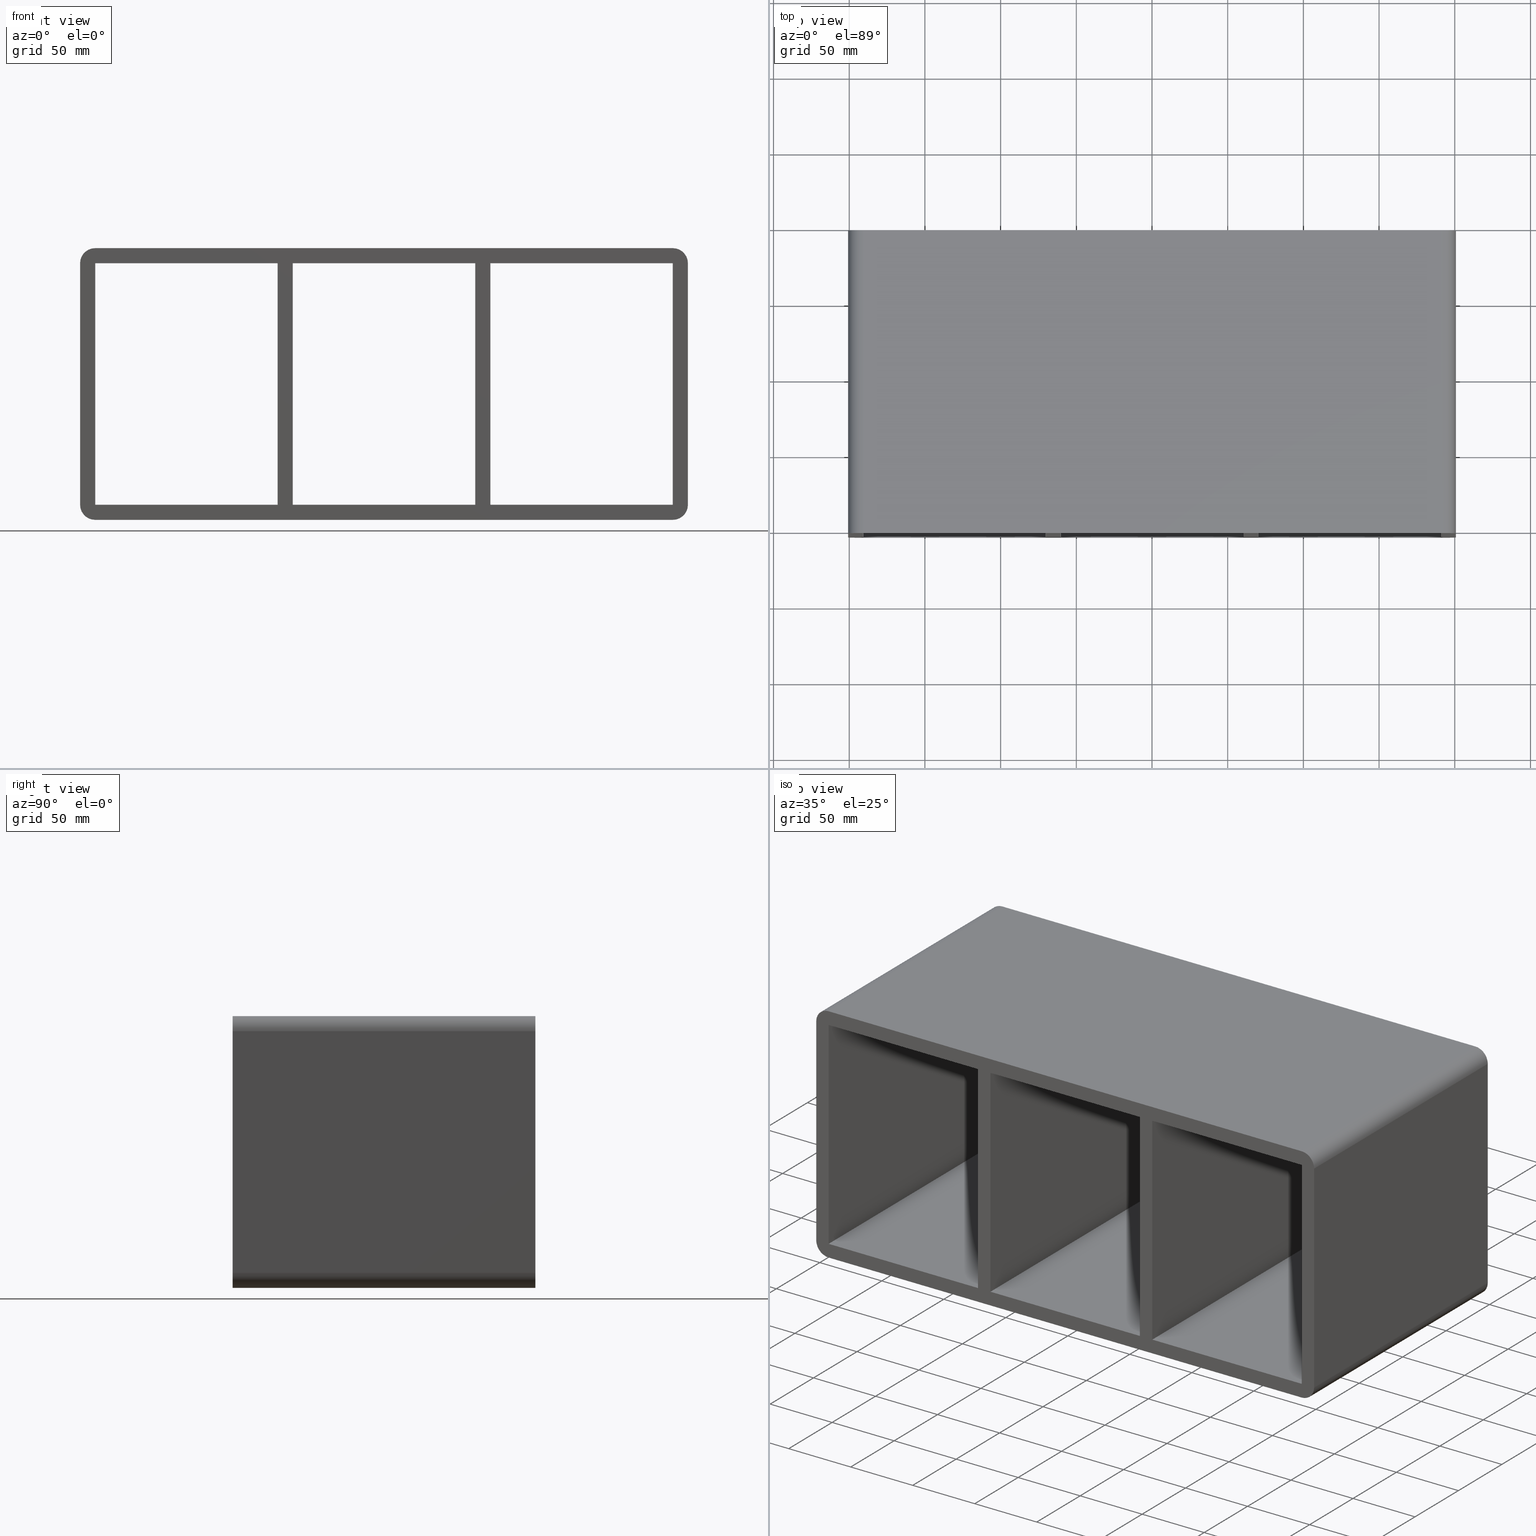
[diagram: canonical four-view strip — front | top / right | iso, engineering-drawing reading convention]
A machine part, canonical four-view strip (front | top / right | iso — engineering-drawing reading convention). The complete STEP part file that produces these views, byte-faithful:
ISO-10303-21;
HEADER;
/****************************************************************
 * Generated by software with PDElib inside                    *
 * PDElib Version v51a, created Wed 11/30/2011                  *
 * ITI Transcendata (http://www.transcendata.com/)              *
 ****************************************************************/
FILE_DESCRIPTION((''),'2;1');
FILE_NAME('C:\\RoxtecConfigurator\\CreatedFiles\\STEP\\SBTB4X3.stp','2013-02-26T13:23:28',(''),(''),'Autodesk Inventor 2013','Autodesk Inventor 2013','');
FILE_SCHEMA(('AUTOMOTIVE_DESIGN { 1 0 10303 214 1 1 1 1 }'));
ENDSEC;
DATA;
#5=APPLICATION_CONTEXT('automotive design');
#6=APPLICATION_PROTOCOL_DEFINITION('International Standard','automotive_design',2001,#5);
#7=PRODUCT_CONTEXT('',#5,'mechanical');
#8=PRODUCT('roxtec S_SF_G','roxtec S_SF_G',$,(#7));
#9=PRODUCT_RELATED_PRODUCT_CATEGORY('part',$,(#8));
#10=PRODUCT_DEFINITION_FORMATION('',$,#8);
#11=PRODUCT_DEFINITION_CONTEXT('part definition',#5,'design');
#12=PRODUCT_DEFINITION('',$,#10,#11);
#18=(NAMED_UNIT(*)PLANE_ANGLE_UNIT()SI_UNIT($,.RADIAN.));
#19=DIMENSIONAL_EXPONENTS(0.0,0.0,0.0,0.0,0.0,0.0,0.0);
#20=PLANE_ANGLE_MEASURE_WITH_UNIT(PLANE_ANGLE_MEASURE(0.0174532925),#18);
#24=(CONVERSION_BASED_UNIT('DEGREE',#20)NAMED_UNIT(#19)PLANE_ANGLE_UNIT());
#28=(NAMED_UNIT(*)SI_UNIT($,.STERADIAN.)SOLID_ANGLE_UNIT());
#32=(LENGTH_UNIT()NAMED_UNIT(*)SI_UNIT(.MILLI.,.METRE.));
#34=UNCERTAINTY_MEASURE_WITH_UNIT(LENGTH_MEASURE(0.01),#32,'DISTANCE_ACCURACY_VALUE','');
#36=(GEOMETRIC_REPRESENTATION_CONTEXT(3)GLOBAL_UNCERTAINTY_ASSIGNED_CONTEXT((#34))GLOBAL_UNIT_ASSIGNED_CONTEXT((#24,#28,#32))REPRESENTATION_CONTEXT('None','None'));
#37=AXIS2_PLACEMENT_3D('',#38,#39,#40);
#38=CARTESIAN_POINT('',(0.0,0.0,0.0));
#39=DIRECTION('',(0.0,0.0,1.0));
#40=DIRECTION('',(1.0,0.0,0.0));
#41=SHAPE_REPRESENTATION('',(#37),#36);
#42=PRODUCT_DEFINITION_SHAPE('','',#12);
#43=SHAPE_DEFINITION_REPRESENTATION(#42,#41);
#49=(NAMED_UNIT(*)PLANE_ANGLE_UNIT()SI_UNIT($,.RADIAN.));
#50=DIMENSIONAL_EXPONENTS(0.0,0.0,0.0,0.0,0.0,0.0,0.0);
#51=PLANE_ANGLE_MEASURE_WITH_UNIT(PLANE_ANGLE_MEASURE(0.0174532925),#49);
#55=(CONVERSION_BASED_UNIT('DEGREE',#51)NAMED_UNIT(#50)PLANE_ANGLE_UNIT());
#59=(NAMED_UNIT(*)SI_UNIT($,.STERADIAN.)SOLID_ANGLE_UNIT());
#63=(LENGTH_UNIT()NAMED_UNIT(*)SI_UNIT(.MILLI.,.METRE.));
#65=UNCERTAINTY_MEASURE_WITH_UNIT(LENGTH_MEASURE(0.000001),#63,'DISTANCE_ACCURACY_VALUE','');
#67=(GEOMETRIC_REPRESENTATION_CONTEXT(3)GLOBAL_UNCERTAINTY_ASSIGNED_CONTEXT((#65))GLOBAL_UNIT_ASSIGNED_CONTEXT((#55,#59,#63))REPRESENTATION_CONTEXT('','3D'));
#68=CARTESIAN_POINT('',(60.249999999998778,-3.0,-79.750000000000014));
#69=DIRECTION('',(-1.0,0.0,0.0));
#70=DIRECTION('',(0.0,0.0,1.0));
#71=AXIS2_PLACEMENT_3D('',#68,#69,#70);
#72=PLANE('',#71);
#73=CARTESIAN_POINT('',(60.249999999998778,-3.0,-79.750000000000014));
#74=VERTEX_POINT('',#73);
#75=CARTESIAN_POINT('',(60.249999999998764,-3.0,79.750000000000028));
#76=VERTEX_POINT('',#75);
#77=CARTESIAN_POINT('',(60.249999999998778,-3.0,-79.750000000000014));
#78=DIRECTION('',(0.0,0.0,1.0));
#79=VECTOR('',#78,159.50000000000006);
#80=LINE('',#77,#79);
#81=EDGE_CURVE('',#74,#76,#80,.T.);
#82=ORIENTED_EDGE('',*,*,#81,.T.);
#83=CARTESIAN_POINT('',(60.249999999998764,197.0,79.750000000000028));
#84=VERTEX_POINT('',#83);
#85=CARTESIAN_POINT('',(60.249999999998771,196.99999999999997,79.750000000000028));
#86=DIRECTION('',(0.0,-1.0,0.0));
#87=VECTOR('',#86,199.99999999999997);
#88=LINE('',#85,#87);
#89=EDGE_CURVE('',#84,#76,#88,.T.);
#90=ORIENTED_EDGE('',*,*,#89,.F.);
#91=CARTESIAN_POINT('',(60.249999999998778,197.0,-79.750000000000014));
#92=VERTEX_POINT('',#91);
#93=CARTESIAN_POINT('',(60.249999999998778,197.0,-79.750000000000014));
#94=DIRECTION('',(0.0,0.0,1.0));
#95=VECTOR('',#94,159.50000000000006);
#96=LINE('',#93,#95);
#97=EDGE_CURVE('',#92,#84,#96,.T.);
#98=ORIENTED_EDGE('',*,*,#97,.F.);
#99=CARTESIAN_POINT('',(60.249999999998778,-3.0,-79.750000000000014));
#100=DIRECTION('',(0.0,1.0,0.0));
#101=VECTOR('',#100,199.99999999999997);
#102=LINE('',#99,#101);
#103=EDGE_CURVE('',#74,#92,#102,.T.);
#104=ORIENTED_EDGE('',*,*,#103,.F.);
#105=EDGE_LOOP('',(#82,#90,#98,#104));
#106=FACE_OUTER_BOUND('',#105,.T.);
#107=ADVANCED_FACE('',(#106),#72,.T.);
#108=CARTESIAN_POINT('',(70.249999999985448,-3.0,79.750000000000028));
#109=DIRECTION('',(1.0,0.0,0.0));
#110=DIRECTION('',(0.0,0.0,-1.0));
#111=AXIS2_PLACEMENT_3D('',#108,#109,#110);
#112=PLANE('',#111);
#113=CARTESIAN_POINT('',(70.249999999985448,-3.0,79.750000000000028));
#114=VERTEX_POINT('',#113);
#115=CARTESIAN_POINT('',(70.249999999985448,-3.0,-79.74999999997155));
#116=VERTEX_POINT('',#115);
#117=CARTESIAN_POINT('',(70.249999999985448,-3.0,79.750000000000028));
#118=DIRECTION('',(0.0,0.0,-1.0));
#119=VECTOR('',#118,159.49999999997158);
#120=LINE('',#117,#119);
#121=EDGE_CURVE('',#114,#116,#120,.T.);
#122=ORIENTED_EDGE('',*,*,#121,.T.);
#123=CARTESIAN_POINT('',(70.249999999985448,197.0,-79.74999999997155));
#124=VERTEX_POINT('',#123);
#125=CARTESIAN_POINT('',(70.249999999985448,196.99999999999997,-79.750000000000014));
#126=DIRECTION('',(0.0,-1.0,0.0));
#127=VECTOR('',#126,199.99999999999997);
#128=LINE('',#125,#127);
#129=EDGE_CURVE('',#124,#116,#128,.T.);
#130=ORIENTED_EDGE('',*,*,#129,.F.);
#131=CARTESIAN_POINT('',(70.249999999985448,197.0,79.750000000000028));
#132=VERTEX_POINT('',#131);
#133=CARTESIAN_POINT('',(70.249999999985448,197.0,79.750000000000028));
#134=DIRECTION('',(0.0,0.0,-1.0));
#135=VECTOR('',#134,159.49999999997158);
#136=LINE('',#133,#135);
#137=EDGE_CURVE('',#132,#124,#136,.T.);
#138=ORIENTED_EDGE('',*,*,#137,.F.);
#139=CARTESIAN_POINT('',(70.249999999985448,-3.0,79.750000000000028));
#140=DIRECTION('',(0.0,1.0,0.0));
#141=VECTOR('',#140,199.99999999999997);
#142=LINE('',#139,#141);
#143=EDGE_CURVE('',#114,#132,#142,.T.);
#144=ORIENTED_EDGE('',*,*,#143,.F.);
#145=EDGE_LOOP('',(#122,#130,#138,#144));
#146=FACE_OUTER_BOUND('',#145,.T.);
#147=ADVANCED_FACE('',(#146),#112,.T.);
#148=CARTESIAN_POINT('',(190.75000000000006,0.0,-79.750000000000014));
#149=DIRECTION('',(0.0,0.0,-1.0));
#150=DIRECTION('',(-1.0,0.0,0.0));
#151=AXIS2_PLACEMENT_3D('',#148,#149,#150);
#152=PLANE('',#151);
#153=ORIENTED_EDGE('',*,*,#103,.T.);
#154=CARTESIAN_POINT('',(-60.250000000014552,197.0,-79.74999999997155));
#155=VERTEX_POINT('',#154);
#156=CARTESIAN_POINT('',(-60.250000000014552,197.0,-79.750000000000014));
#157=DIRECTION('',(1.0,0.0,0.0));
#158=VECTOR('',#157,120.50000000001333);
#159=LINE('',#156,#158);
#160=EDGE_CURVE('',#155,#92,#159,.T.);
#161=ORIENTED_EDGE('',*,*,#160,.F.);
#162=CARTESIAN_POINT('',(-60.250000000014552,-3.0,-79.74999999997155));
#163=VERTEX_POINT('',#162);
#164=CARTESIAN_POINT('',(-60.250000000014552,196.99999999999997,-79.750000000000014));
#165=DIRECTION('',(0.0,-1.0,0.0));
#166=VECTOR('',#165,199.99999999999997);
#167=LINE('',#164,#166);
#168=EDGE_CURVE('',#155,#163,#167,.T.);
#169=ORIENTED_EDGE('',*,*,#168,.T.);
#170=CARTESIAN_POINT('',(60.249999999998778,-3.0,-79.750000000000014));
#171=DIRECTION('',(-1.0,0.0,0.0));
#172=VECTOR('',#171,120.50000000001333);
#173=LINE('',#170,#172);
#174=EDGE_CURVE('',#74,#163,#173,.T.);
#175=ORIENTED_EDGE('',*,*,#174,.F.);
#176=EDGE_LOOP('',(#153,#161,#169,#175));
#177=FACE_OUTER_BOUND('',#176,.T.);
#178=ADVANCED_FACE('',(#177),#152,.F.);
#179=CARTESIAN_POINT('',(190.75000000000006,0.0,-79.750000000000014));
#180=DIRECTION('',(0.0,0.0,-1.0));
#181=DIRECTION('',(-1.0,0.0,0.0));
#182=AXIS2_PLACEMENT_3D('',#179,#180,#181);
#183=PLANE('',#182);
#184=ORIENTED_EDGE('',*,*,#129,.T.);
#185=CARTESIAN_POINT('',(190.75000000000006,-3.0,-79.750000000000014));
#186=VERTEX_POINT('',#185);
#187=CARTESIAN_POINT('',(190.75000000000006,-3.0,-79.750000000000014));
#188=DIRECTION('',(-1.0,0.0,0.0));
#189=VECTOR('',#188,120.50000000001461);
#190=LINE('',#187,#189);
#191=EDGE_CURVE('',#186,#116,#190,.T.);
#192=ORIENTED_EDGE('',*,*,#191,.F.);
#193=CARTESIAN_POINT('',(190.75000000000006,197.0,-79.750000000000014));
#194=VERTEX_POINT('',#193);
#195=CARTESIAN_POINT('',(190.75000000000006,197.0,-79.750000000000014));
#196=DIRECTION('',(0.0,-1.0,0.0));
#197=VECTOR('',#196,200.0);
#198=LINE('',#195,#197);
#199=EDGE_CURVE('',#194,#186,#198,.T.);
#200=ORIENTED_EDGE('',*,*,#199,.F.);
#201=CARTESIAN_POINT('',(70.249999999985448,197.0,-79.750000000000014));
#202=DIRECTION('',(1.0,0.0,0.0));
#203=VECTOR('',#202,120.50000000001461);
#204=LINE('',#201,#203);
#205=EDGE_CURVE('',#124,#194,#204,.T.);
#206=ORIENTED_EDGE('',*,*,#205,.F.);
#207=EDGE_LOOP('',(#184,#192,#200,#206));
#208=FACE_OUTER_BOUND('',#207,.T.);
#209=ADVANCED_FACE('',(#208),#183,.F.);
#210=CARTESIAN_POINT('',(-190.75000000000003,0.0,79.750000000000028));
#211=DIRECTION('',(0.0,0.0,1.0));
#212=DIRECTION('',(1.0,0.0,0.0));
#213=AXIS2_PLACEMENT_3D('',#210,#211,#212);
#214=PLANE('',#213);
#215=ORIENTED_EDGE('',*,*,#143,.T.);
#216=CARTESIAN_POINT('',(190.75000000000006,197.0,79.750000000000028));
#217=VERTEX_POINT('',#216);
#218=CARTESIAN_POINT('',(190.75000000000006,197.0,79.750000000000028));
#219=DIRECTION('',(-1.0,0.0,0.0));
#220=VECTOR('',#219,120.50000000001459);
#221=LINE('',#218,#220);
#222=EDGE_CURVE('',#217,#132,#221,.T.);
#223=ORIENTED_EDGE('',*,*,#222,.F.);
#224=CARTESIAN_POINT('',(190.75000000000006,-3.0,79.750000000000028));
#225=VERTEX_POINT('',#224);
#226=CARTESIAN_POINT('',(190.75000000000006,-3.0,79.750000000000028));
#227=DIRECTION('',(0.0,1.0,0.0));
#228=VECTOR('',#227,200.0);
#229=LINE('',#226,#228);
#230=EDGE_CURVE('',#225,#217,#229,.T.);
#231=ORIENTED_EDGE('',*,*,#230,.F.);
#232=CARTESIAN_POINT('',(70.249999999985462,-3.0,79.750000000000028));
#233=DIRECTION('',(1.0,0.0,0.0));
#234=VECTOR('',#233,120.50000000001459);
#235=LINE('',#232,#234);
#236=EDGE_CURVE('',#114,#225,#235,.T.);
#237=ORIENTED_EDGE('',*,*,#236,.F.);
#238=EDGE_LOOP('',(#215,#223,#231,#237));
#239=FACE_OUTER_BOUND('',#238,.T.);
#240=ADVANCED_FACE('',(#239),#214,.F.);
#241=CARTESIAN_POINT('',(-190.75000000000003,0.0,79.750000000000028));
#242=DIRECTION('',(0.0,0.0,1.0));
#243=DIRECTION('',(1.0,0.0,0.0));
#244=AXIS2_PLACEMENT_3D('',#241,#242,#243);
#245=PLANE('',#244);
#246=ORIENTED_EDGE('',*,*,#89,.T.);
#247=CARTESIAN_POINT('',(-60.250000000014552,-3.0,79.750000000000028));
#248=VERTEX_POINT('',#247);
#249=CARTESIAN_POINT('',(-60.250000000014552,-3.0,79.750000000000028));
#250=DIRECTION('',(1.0,0.0,0.0));
#251=VECTOR('',#250,120.50000000001332);
#252=LINE('',#249,#251);
#253=EDGE_CURVE('',#248,#76,#252,.T.);
#254=ORIENTED_EDGE('',*,*,#253,.F.);
#255=CARTESIAN_POINT('',(-60.250000000014552,197.0,79.750000000000028));
#256=VERTEX_POINT('',#255);
#257=CARTESIAN_POINT('',(-60.250000000014552,-3.0,79.750000000000028));
#258=DIRECTION('',(0.0,1.0,0.0));
#259=VECTOR('',#258,199.99999999999997);
#260=LINE('',#257,#259);
#261=EDGE_CURVE('',#248,#256,#260,.T.);
#262=ORIENTED_EDGE('',*,*,#261,.T.);
#263=CARTESIAN_POINT('',(60.249999999998764,197.0,79.750000000000028));
#264=DIRECTION('',(-1.0,0.0,0.0));
#265=VECTOR('',#264,120.50000000001332);
#266=LINE('',#263,#265);
#267=EDGE_CURVE('',#84,#256,#266,.T.);
#268=ORIENTED_EDGE('',*,*,#267,.F.);
#269=EDGE_LOOP('',(#246,#254,#262,#268));
#270=FACE_OUTER_BOUND('',#269,.T.);
#271=ADVANCED_FACE('',(#270),#245,.F.);
#272=CARTESIAN_POINT('',(-70.250000000001222,-3.0,-79.750000000000014));
#273=DIRECTION('',(-1.0,0.0,0.0));
#274=DIRECTION('',(0.0,0.0,1.0));
#275=AXIS2_PLACEMENT_3D('',#272,#273,#274);
#276=PLANE('',#275);
#277=CARTESIAN_POINT('',(-70.250000000001222,-3.0,-79.750000000000014));
#278=VERTEX_POINT('',#277);
#279=CARTESIAN_POINT('',(-70.250000000001251,-3.0,79.750000000000028));
#280=VERTEX_POINT('',#279);
#281=CARTESIAN_POINT('',(-70.250000000001222,-3.0,-79.750000000000014));
#282=DIRECTION('',(0.0,0.0,1.0));
#283=VECTOR('',#282,159.50000000000006);
#284=LINE('',#281,#283);
#285=EDGE_CURVE('',#278,#280,#284,.T.);
#286=ORIENTED_EDGE('',*,*,#285,.T.);
#287=CARTESIAN_POINT('',(-70.250000000001251,197.0,79.750000000000028));
#288=VERTEX_POINT('',#287);
#289=CARTESIAN_POINT('',(-70.250000000001251,196.99999999999997,79.750000000000028));
#290=DIRECTION('',(0.0,-1.0,0.0));
#291=VECTOR('',#290,199.99999999999997);
#292=LINE('',#289,#291);
#293=EDGE_CURVE('',#288,#280,#292,.T.);
#294=ORIENTED_EDGE('',*,*,#293,.F.);
#295=CARTESIAN_POINT('',(-70.250000000001222,197.0,-79.750000000000014));
#296=VERTEX_POINT('',#295);
#297=CARTESIAN_POINT('',(-70.250000000001222,197.0,-79.750000000000014));
#298=DIRECTION('',(0.0,0.0,1.0));
#299=VECTOR('',#298,159.50000000000006);
#300=LINE('',#297,#299);
#301=EDGE_CURVE('',#296,#288,#300,.T.);
#302=ORIENTED_EDGE('',*,*,#301,.F.);
#303=CARTESIAN_POINT('',(-70.250000000001222,-3.0,-79.750000000000014));
#304=DIRECTION('',(0.0,1.0,0.0));
#305=VECTOR('',#304,199.99999999999997);
#306=LINE('',#303,#305);
#307=EDGE_CURVE('',#278,#296,#306,.T.);
#308=ORIENTED_EDGE('',*,*,#307,.F.);
#309=EDGE_LOOP('',(#286,#294,#302,#308));
#310=FACE_OUTER_BOUND('',#309,.T.);
#311=ADVANCED_FACE('',(#310),#276,.T.);
#312=CARTESIAN_POINT('',(-60.250000000014552,-3.0,79.750000000000028));
#313=DIRECTION('',(1.0,0.0,0.0));
#314=DIRECTION('',(0.0,0.0,-1.0));
#315=AXIS2_PLACEMENT_3D('',#312,#313,#314);
#316=PLANE('',#315);
#317=CARTESIAN_POINT('',(-60.250000000014552,-3.0,79.750000000000028));
#318=DIRECTION('',(0.0,0.0,-1.0));
#319=VECTOR('',#318,159.49999999997158);
#320=LINE('',#317,#319);
#321=EDGE_CURVE('',#248,#163,#320,.T.);
#322=ORIENTED_EDGE('',*,*,#321,.T.);
#323=ORIENTED_EDGE('',*,*,#168,.F.);
#324=CARTESIAN_POINT('',(-60.250000000014552,197.0,79.750000000000028));
#325=DIRECTION('',(0.0,0.0,-1.0));
#326=VECTOR('',#325,159.49999999997158);
#327=LINE('',#324,#326);
#328=EDGE_CURVE('',#256,#155,#327,.T.);
#329=ORIENTED_EDGE('',*,*,#328,.F.);
#330=ORIENTED_EDGE('',*,*,#261,.F.);
#331=EDGE_LOOP('',(#322,#323,#329,#330));
#332=FACE_OUTER_BOUND('',#331,.T.);
#333=ADVANCED_FACE('',(#332),#316,.T.);
#334=CARTESIAN_POINT('',(190.75000000000006,0.0,-79.750000000000014));
#335=DIRECTION('',(0.0,0.0,-1.0));
#336=DIRECTION('',(-1.0,0.0,0.0));
#337=AXIS2_PLACEMENT_3D('',#334,#335,#336);
#338=PLANE('',#337);
#339=ORIENTED_EDGE('',*,*,#307,.T.);
#340=CARTESIAN_POINT('',(-190.75,197.0,-79.750000000000014));
#341=VERTEX_POINT('',#340);
#342=CARTESIAN_POINT('',(-190.75000000000003,197.0,-79.750000000000014));
#343=DIRECTION('',(1.0,0.0,0.0));
#344=VECTOR('',#343,120.49999999999878);
#345=LINE('',#342,#344);
#346=EDGE_CURVE('',#341,#296,#345,.T.);
#347=ORIENTED_EDGE('',*,*,#346,.F.);
#348=CARTESIAN_POINT('',(-190.75,-3.0,-79.750000000000014));
#349=VERTEX_POINT('',#348);
#350=CARTESIAN_POINT('',(-190.75000000000003,-3.0,-79.750000000000014));
#351=DIRECTION('',(0.0,1.0,0.0));
#352=VECTOR('',#351,200.0);
#353=LINE('',#350,#352);
#354=EDGE_CURVE('',#349,#341,#353,.T.);
#355=ORIENTED_EDGE('',*,*,#354,.F.);
#356=CARTESIAN_POINT('',(-70.250000000001251,-3.0,-79.750000000000014));
#357=DIRECTION('',(-1.0,0.0,0.0));
#358=VECTOR('',#357,120.49999999999878);
#359=LINE('',#356,#358);
#360=EDGE_CURVE('',#278,#349,#359,.T.);
#361=ORIENTED_EDGE('',*,*,#360,.F.);
#362=EDGE_LOOP('',(#339,#347,#355,#361));
#363=FACE_OUTER_BOUND('',#362,.T.);
#364=ADVANCED_FACE('',(#363),#338,.F.);
#365=CARTESIAN_POINT('',(-190.75000000000003,0.0,79.750000000000028));
#366=DIRECTION('',(0.0,0.0,1.0));
#367=DIRECTION('',(1.0,0.0,0.0));
#368=AXIS2_PLACEMENT_3D('',#365,#366,#367);
#369=PLANE('',#368);
#370=ORIENTED_EDGE('',*,*,#293,.T.);
#371=CARTESIAN_POINT('',(-190.75,-3.0,79.750000000000028));
#372=VERTEX_POINT('',#371);
#373=CARTESIAN_POINT('',(-190.75,-3.0,79.750000000000028));
#374=DIRECTION('',(1.0,0.0,0.0));
#375=VECTOR('',#374,120.49999999999875);
#376=LINE('',#373,#375);
#377=EDGE_CURVE('',#372,#280,#376,.T.);
#378=ORIENTED_EDGE('',*,*,#377,.F.);
#379=CARTESIAN_POINT('',(-190.75,197.0,79.750000000000028));
#380=VERTEX_POINT('',#379);
#381=CARTESIAN_POINT('',(-190.75000000000003,-3.0,79.750000000000028));
#382=DIRECTION('',(0.0,1.0,0.0));
#383=VECTOR('',#382,200.0);
#384=LINE('',#381,#383);
#385=EDGE_CURVE('',#372,#380,#384,.T.);
#386=ORIENTED_EDGE('',*,*,#385,.T.);
#387=CARTESIAN_POINT('',(-70.250000000001251,197.0,79.750000000000028));
#388=DIRECTION('',(-1.0,0.0,0.0));
#389=VECTOR('',#388,120.49999999999875);
#390=LINE('',#387,#389);
#391=EDGE_CURVE('',#288,#380,#390,.T.);
#392=ORIENTED_EDGE('',*,*,#391,.F.);
#393=EDGE_LOOP('',(#370,#378,#386,#392));
#394=FACE_OUTER_BOUND('',#393,.T.);
#395=ADVANCED_FACE('',(#394),#369,.F.);
#396=CARTESIAN_POINT('',(-190.75000000000003,0.0,-79.75));
#397=DIRECTION('',(0.0,1.0,0.0));
#398=DIRECTION('',(-0.707106781186547,0.0,-0.707106781186547));
#399=AXIS2_PLACEMENT_3D('',#396,#397,#398);
#400=CYLINDRICAL_SURFACE('',#399,10.0);
#401=CARTESIAN_POINT('',(-200.75000000000003,197.0,-79.75));
#402=VERTEX_POINT('',#401);
#403=CARTESIAN_POINT('',(-190.75000000000003,197.0,-89.75));
#404=VERTEX_POINT('',#403);
#405=CARTESIAN_POINT('',(-190.75000000000003,197.0,-79.75));
#406=DIRECTION('',(0.0,-1.0,0.0));
#407=DIRECTION('',(-0.707106781186547,0.0,-0.707106781186547));
#408=AXIS2_PLACEMENT_3D('',#405,#406,#407);
#409=CIRCLE('',#408,9.999999999999998);
#410=EDGE_CURVE('',#402,#404,#409,.T.);
#411=ORIENTED_EDGE('',*,*,#410,.T.);
#412=CARTESIAN_POINT('',(-190.75000000000003,-3.0,-89.75));
#413=VERTEX_POINT('',#412);
#414=CARTESIAN_POINT('',(-190.75000000000003,197.0,-89.75));
#415=DIRECTION('',(0.0,-1.0,0.0));
#416=VECTOR('',#415,200.0);
#417=LINE('',#414,#416);
#418=EDGE_CURVE('',#404,#413,#417,.T.);
#419=ORIENTED_EDGE('',*,*,#418,.T.);
#420=CARTESIAN_POINT('',(-200.75000000000003,-3.0,-79.75));
#421=VERTEX_POINT('',#420);
#422=CARTESIAN_POINT('',(-190.75000000000003,-3.0,-79.75));
#423=DIRECTION('',(0.0,1.0,0.0));
#424=DIRECTION('',(-0.707106781186547,0.0,-0.707106781186547));
#425=AXIS2_PLACEMENT_3D('',#422,#423,#424);
#426=CIRCLE('',#425,9.999999999999998);
#427=EDGE_CURVE('',#413,#421,#426,.T.);
#428=ORIENTED_EDGE('',*,*,#427,.T.);
#429=CARTESIAN_POINT('',(-200.75000000000003,-3.0,-79.75));
#430=DIRECTION('',(0.0,1.0,0.0));
#431=VECTOR('',#430,200.0);
#432=LINE('',#429,#431);
#433=EDGE_CURVE('',#421,#402,#432,.T.);
#434=ORIENTED_EDGE('',*,*,#433,.T.);
#435=EDGE_LOOP('',(#411,#419,#428,#434));
#436=FACE_OUTER_BOUND('',#435,.T.);
#437=ADVANCED_FACE('',(#436),#400,.T.);
#438=CARTESIAN_POINT('',(-1.714444E-014,-3.0,1.467558E-014));
#439=DIRECTION('',(0.0,1.0,0.0));
#440=DIRECTION('',(0.0,0.0,1.0));
#441=AXIS2_PLACEMENT_3D('',#438,#439,#440);
#442=PLANE('',#441);
#443=ORIENTED_EDGE('',*,*,#427,.F.);
#444=CARTESIAN_POINT('',(190.75,-3.0,-89.75));
#445=VERTEX_POINT('',#444);
#446=CARTESIAN_POINT('',(-190.75000000000003,-3.0,-89.75));
#447=DIRECTION('',(1.0,0.0,0.0));
#448=VECTOR('',#447,381.5);
#449=LINE('',#446,#448);
#450=EDGE_CURVE('',#413,#445,#449,.T.);
#451=ORIENTED_EDGE('',*,*,#450,.T.);
#452=CARTESIAN_POINT('',(200.75,-3.0,-79.75));
#453=VERTEX_POINT('',#452);
#454=CARTESIAN_POINT('',(190.75,-3.0,-79.75));
#455=DIRECTION('',(0.0,1.0,0.0));
#456=DIRECTION('',(0.707106781186547,0.0,-0.707106781186547));
#457=AXIS2_PLACEMENT_3D('',#454,#455,#456);
#458=CIRCLE('',#457,9.999999999999998);
#459=EDGE_CURVE('',#453,#445,#458,.T.);
#460=ORIENTED_EDGE('',*,*,#459,.F.);
#461=CARTESIAN_POINT('',(200.75,-3.0,79.750000000000028));
#462=VERTEX_POINT('',#461);
#463=CARTESIAN_POINT('',(200.75,-3.0,-79.75));
#464=DIRECTION('',(0.0,0.0,1.0));
#465=VECTOR('',#464,159.50000000000003);
#466=LINE('',#463,#465);
#467=EDGE_CURVE('',#453,#462,#466,.T.);
#468=ORIENTED_EDGE('',*,*,#467,.T.);
#469=CARTESIAN_POINT('',(190.75,-3.0,89.750000000000028));
#470=VERTEX_POINT('',#469);
#471=CARTESIAN_POINT('',(190.75000000000003,-3.0,79.750000000000028));
#472=DIRECTION('',(0.0,1.0,0.0));
#473=DIRECTION('',(0.707106781186547,0.0,0.707106781186547));
#474=AXIS2_PLACEMENT_3D('',#471,#472,#473);
#475=CIRCLE('',#474,9.999999999999998);
#476=EDGE_CURVE('',#470,#462,#475,.T.);
#477=ORIENTED_EDGE('',*,*,#476,.F.);
#478=CARTESIAN_POINT('',(-190.75000000000003,-3.0,89.750000000000028));
#479=VERTEX_POINT('',#478);
#480=CARTESIAN_POINT('',(190.75,-3.0,89.750000000000028));
#481=DIRECTION('',(-1.0,0.0,0.0));
#482=VECTOR('',#481,381.5);
#483=LINE('',#480,#482);
#484=EDGE_CURVE('',#470,#479,#483,.T.);
#485=ORIENTED_EDGE('',*,*,#484,.T.);
#486=CARTESIAN_POINT('',(-200.75000000000003,-3.0,79.750000000000028));
#487=VERTEX_POINT('',#486);
#488=CARTESIAN_POINT('',(-190.75000000000003,-3.0,79.750000000000028));
#489=DIRECTION('',(0.0,1.0,0.0));
#490=DIRECTION('',(-0.707106781186547,0.0,0.707106781186547));
#491=AXIS2_PLACEMENT_3D('',#488,#489,#490);
#492=CIRCLE('',#491,9.999999999999998);
#493=EDGE_CURVE('',#487,#479,#492,.T.);
#494=ORIENTED_EDGE('',*,*,#493,.F.);
#495=CARTESIAN_POINT('',(-200.75000000000003,-3.0,79.750000000000028));
#496=DIRECTION('',(0.0,0.0,-1.0));
#497=VECTOR('',#496,159.50000000000003);
#498=LINE('',#495,#497);
#499=EDGE_CURVE('',#487,#421,#498,.T.);
#500=ORIENTED_EDGE('',*,*,#499,.T.);
#501=EDGE_LOOP('',(#443,#451,#460,#468,#477,#485,#494,#500));
#502=FACE_OUTER_BOUND('',#501,.T.);
#503=ORIENTED_EDGE('',*,*,#174,.T.);
#504=ORIENTED_EDGE('',*,*,#321,.F.);
#505=ORIENTED_EDGE('',*,*,#253,.T.);
#506=ORIENTED_EDGE('',*,*,#81,.F.);
#507=EDGE_LOOP('',(#503,#504,#505,#506));
#508=FACE_BOUND('',#507,.T.);
#509=ORIENTED_EDGE('',*,*,#360,.T.);
#510=CARTESIAN_POINT('',(-190.75000000000003,-3.0,-79.750000000000014));
#511=DIRECTION('',(0.0,0.0,1.0));
#512=VECTOR('',#511,159.50000000000006);
#513=LINE('',#510,#512);
#514=EDGE_CURVE('',#349,#372,#513,.T.);
#515=ORIENTED_EDGE('',*,*,#514,.T.);
#516=ORIENTED_EDGE('',*,*,#377,.T.);
#517=ORIENTED_EDGE('',*,*,#285,.F.);
#518=EDGE_LOOP('',(#509,#515,#516,#517));
#519=FACE_BOUND('',#518,.T.);
#520=ORIENTED_EDGE('',*,*,#121,.F.);
#521=ORIENTED_EDGE('',*,*,#236,.T.);
#522=CARTESIAN_POINT('',(190.75000000000006,-3.0,79.750000000000028));
#523=DIRECTION('',(0.0,0.0,-1.0));
#524=VECTOR('',#523,159.50000000000006);
#525=LINE('',#522,#524);
#526=EDGE_CURVE('',#225,#186,#525,.T.);
#527=ORIENTED_EDGE('',*,*,#526,.T.);
#528=ORIENTED_EDGE('',*,*,#191,.T.);
#529=EDGE_LOOP('',(#520,#521,#527,#528));
#530=FACE_BOUND('',#529,.T.);
#531=ADVANCED_FACE('',(#502,#508,#519,#530),#442,.F.);
#532=CARTESIAN_POINT('',(200.75,0.0,-89.75));
#533=DIRECTION('',(0.0,0.0,-1.0));
#534=DIRECTION('',(-1.0,0.0,0.0));
#535=AXIS2_PLACEMENT_3D('',#532,#533,#534);
#536=PLANE('',#535);
#537=ORIENTED_EDGE('',*,*,#418,.F.);
#538=CARTESIAN_POINT('',(190.75,197.0,-89.75));
#539=VERTEX_POINT('',#538);
#540=CARTESIAN_POINT('',(190.75,197.0,-89.75));
#541=DIRECTION('',(-1.0,0.0,0.0));
#542=VECTOR('',#541,381.5);
#543=LINE('',#540,#542);
#544=EDGE_CURVE('',#539,#404,#543,.T.);
#545=ORIENTED_EDGE('',*,*,#544,.F.);
#546=CARTESIAN_POINT('',(190.75,-3.0,-89.75));
#547=DIRECTION('',(0.0,1.0,0.0));
#548=VECTOR('',#547,200.0);
#549=LINE('',#546,#548);
#550=EDGE_CURVE('',#445,#539,#549,.T.);
#551=ORIENTED_EDGE('',*,*,#550,.F.);
#552=ORIENTED_EDGE('',*,*,#450,.F.);
#553=EDGE_LOOP('',(#537,#545,#551,#552));
#554=FACE_OUTER_BOUND('',#553,.T.);
#555=ADVANCED_FACE('',(#554),#536,.T.);
#556=CARTESIAN_POINT('',(190.75,0.0,-79.75));
#557=DIRECTION('',(0.0,1.0,0.0));
#558=DIRECTION('',(0.707106781186547,0.0,-0.707106781186547));
#559=AXIS2_PLACEMENT_3D('',#556,#557,#558);
#560=CYLINDRICAL_SURFACE('',#559,10.0);
#561=CARTESIAN_POINT('',(200.75,197.0,-79.75));
#562=VERTEX_POINT('',#561);
#563=CARTESIAN_POINT('',(190.75,197.0,-79.75));
#564=DIRECTION('',(0.0,-1.0,0.0));
#565=DIRECTION('',(0.707106781186547,0.0,-0.707106781186547));
#566=AXIS2_PLACEMENT_3D('',#563,#564,#565);
#567=CIRCLE('',#566,9.999999999999998);
#568=EDGE_CURVE('',#539,#562,#567,.T.);
#569=ORIENTED_EDGE('',*,*,#568,.T.);
#570=CARTESIAN_POINT('',(200.75,197.0,-79.75));
#571=DIRECTION('',(0.0,-1.0,0.0));
#572=VECTOR('',#571,200.0);
#573=LINE('',#570,#572);
#574=EDGE_CURVE('',#562,#453,#573,.T.);
#575=ORIENTED_EDGE('',*,*,#574,.T.);
#576=ORIENTED_EDGE('',*,*,#459,.T.);
#577=ORIENTED_EDGE('',*,*,#550,.T.);
#578=EDGE_LOOP('',(#569,#575,#576,#577));
#579=FACE_OUTER_BOUND('',#578,.T.);
#580=ADVANCED_FACE('',(#579),#560,.T.);
#581=CARTESIAN_POINT('',(190.75000000000003,0.0,79.750000000000028));
#582=DIRECTION('',(0.0,-1.0,0.0));
#583=DIRECTION('',(0.707106781186547,0.0,0.707106781186547));
#584=AXIS2_PLACEMENT_3D('',#581,#582,#583);
#585=CYLINDRICAL_SURFACE('',#584,10.0);
#586=ORIENTED_EDGE('',*,*,#476,.T.);
#587=CARTESIAN_POINT('',(200.75,197.0,79.750000000000028));
#588=VERTEX_POINT('',#587);
#589=CARTESIAN_POINT('',(200.75,-3.0,79.750000000000028));
#590=DIRECTION('',(0.0,1.0,0.0));
#591=VECTOR('',#590,200.0);
#592=LINE('',#589,#591);
#593=EDGE_CURVE('',#462,#588,#592,.T.);
#594=ORIENTED_EDGE('',*,*,#593,.T.);
#595=CARTESIAN_POINT('',(190.75,197.0,89.750000000000028));
#596=VERTEX_POINT('',#595);
#597=CARTESIAN_POINT('',(190.75000000000003,197.0,79.750000000000028));
#598=DIRECTION('',(0.0,-1.0,0.0));
#599=DIRECTION('',(0.707106781186547,0.0,0.707106781186547));
#600=AXIS2_PLACEMENT_3D('',#597,#598,#599);
#601=CIRCLE('',#600,9.999999999999998);
#602=EDGE_CURVE('',#588,#596,#601,.T.);
#603=ORIENTED_EDGE('',*,*,#602,.T.);
#604=CARTESIAN_POINT('',(190.75000000000003,197.0,89.750000000000028));
#605=DIRECTION('',(0.0,-1.0,0.0));
#606=VECTOR('',#605,200.0);
#607=LINE('',#604,#606);
#608=EDGE_CURVE('',#596,#470,#607,.T.);
#609=ORIENTED_EDGE('',*,*,#608,.T.);
#610=EDGE_LOOP('',(#586,#594,#603,#609));
#611=FACE_OUTER_BOUND('',#610,.T.);
#612=ADVANCED_FACE('',(#611),#585,.T.);
#613=CARTESIAN_POINT('',(-200.75000000000003,0.0,89.750000000000028));
#614=DIRECTION('',(0.0,0.0,1.0));
#615=DIRECTION('',(1.0,0.0,0.0));
#616=AXIS2_PLACEMENT_3D('',#613,#614,#615);
#617=PLANE('',#616);
#618=ORIENTED_EDGE('',*,*,#608,.F.);
#619=CARTESIAN_POINT('',(-190.75000000000003,197.0,89.750000000000028));
#620=VERTEX_POINT('',#619);
#621=CARTESIAN_POINT('',(-190.75000000000003,197.0,89.750000000000028));
#622=DIRECTION('',(1.0,0.0,0.0));
#623=VECTOR('',#622,381.5);
#624=LINE('',#621,#623);
#625=EDGE_CURVE('',#620,#596,#624,.T.);
#626=ORIENTED_EDGE('',*,*,#625,.F.);
#627=CARTESIAN_POINT('',(-190.75000000000003,-3.0,89.750000000000028));
#628=DIRECTION('',(0.0,1.0,0.0));
#629=VECTOR('',#628,200.0);
#630=LINE('',#627,#629);
#631=EDGE_CURVE('',#479,#620,#630,.T.);
#632=ORIENTED_EDGE('',*,*,#631,.F.);
#633=ORIENTED_EDGE('',*,*,#484,.F.);
#634=EDGE_LOOP('',(#618,#626,#632,#633));
#635=FACE_OUTER_BOUND('',#634,.T.);
#636=ADVANCED_FACE('',(#635),#617,.T.);
#637=CARTESIAN_POINT('',(-190.75000000000003,0.0,79.750000000000028));
#638=DIRECTION('',(0.0,1.0,0.0));
#639=DIRECTION('',(-0.707106781186547,0.0,0.707106781186547));
#640=AXIS2_PLACEMENT_3D('',#637,#638,#639);
#641=CYLINDRICAL_SURFACE('',#640,10.0);
#642=CARTESIAN_POINT('',(-200.75000000000003,197.0,79.750000000000028));
#643=VERTEX_POINT('',#642);
#644=CARTESIAN_POINT('',(-190.75000000000003,197.0,79.750000000000028));
#645=DIRECTION('',(0.0,-1.0,0.0));
#646=DIRECTION('',(-0.707106781186547,0.0,0.707106781186547));
#647=AXIS2_PLACEMENT_3D('',#644,#645,#646);
#648=CIRCLE('',#647,9.999999999999998);
#649=EDGE_CURVE('',#620,#643,#648,.T.);
#650=ORIENTED_EDGE('',*,*,#649,.T.);
#651=CARTESIAN_POINT('',(-200.75000000000003,197.0,79.750000000000028));
#652=DIRECTION('',(0.0,-1.0,0.0));
#653=VECTOR('',#652,200.0);
#654=LINE('',#651,#653);
#655=EDGE_CURVE('',#643,#487,#654,.T.);
#656=ORIENTED_EDGE('',*,*,#655,.T.);
#657=ORIENTED_EDGE('',*,*,#493,.T.);
#658=ORIENTED_EDGE('',*,*,#631,.T.);
#659=EDGE_LOOP('',(#650,#656,#657,#658));
#660=FACE_OUTER_BOUND('',#659,.T.);
#661=ADVANCED_FACE('',(#660),#641,.T.);
#662=CARTESIAN_POINT('',(190.75000000000006,0.0,79.750000000000028));
#663=DIRECTION('',(1.0,0.0,0.0));
#664=DIRECTION('',(0.0,0.0,-1.0));
#665=AXIS2_PLACEMENT_3D('',#662,#663,#664);
#666=PLANE('',#665);
#667=ORIENTED_EDGE('',*,*,#199,.T.);
#668=ORIENTED_EDGE('',*,*,#526,.F.);
#669=ORIENTED_EDGE('',*,*,#230,.T.);
#670=CARTESIAN_POINT('',(190.75000000000006,197.0,-79.750000000000014));
#671=DIRECTION('',(0.0,0.0,1.0));
#672=VECTOR('',#671,159.50000000000006);
#673=LINE('',#670,#672);
#674=EDGE_CURVE('',#194,#217,#673,.T.);
#675=ORIENTED_EDGE('',*,*,#674,.F.);
#676=EDGE_LOOP('',(#667,#668,#669,#675));
#677=FACE_OUTER_BOUND('',#676,.T.);
#678=ADVANCED_FACE('',(#677),#666,.F.);
#679=CARTESIAN_POINT('',(-190.75000000000003,0.0,-79.750000000000014));
#680=DIRECTION('',(-1.0,0.0,0.0));
#681=DIRECTION('',(0.0,0.0,1.0));
#682=AXIS2_PLACEMENT_3D('',#679,#680,#681);
#683=PLANE('',#682);
#684=ORIENTED_EDGE('',*,*,#385,.F.);
#685=ORIENTED_EDGE('',*,*,#514,.F.);
#686=ORIENTED_EDGE('',*,*,#354,.T.);
#687=CARTESIAN_POINT('',(-190.75000000000003,197.0,79.750000000000028));
#688=DIRECTION('',(0.0,0.0,-1.0));
#689=VECTOR('',#688,159.50000000000006);
#690=LINE('',#687,#689);
#691=EDGE_CURVE('',#380,#341,#690,.T.);
#692=ORIENTED_EDGE('',*,*,#691,.F.);
#693=EDGE_LOOP('',(#684,#685,#686,#692));
#694=FACE_OUTER_BOUND('',#693,.T.);
#695=ADVANCED_FACE('',(#694),#683,.F.);
#696=CARTESIAN_POINT('',(-200.75000000000003,0.0,-89.75));
#697=DIRECTION('',(-1.0,0.0,0.0));
#698=DIRECTION('',(0.0,0.0,1.0));
#699=AXIS2_PLACEMENT_3D('',#696,#697,#698);
#700=PLANE('',#699);
#701=ORIENTED_EDGE('',*,*,#433,.F.);
#702=ORIENTED_EDGE('',*,*,#499,.F.);
#703=ORIENTED_EDGE('',*,*,#655,.F.);
#704=CARTESIAN_POINT('',(-200.75000000000003,197.0,-79.75));
#705=DIRECTION('',(0.0,0.0,1.0));
#706=VECTOR('',#705,159.50000000000003);
#707=LINE('',#704,#706);
#708=EDGE_CURVE('',#402,#643,#707,.T.);
#709=ORIENTED_EDGE('',*,*,#708,.F.);
#710=EDGE_LOOP('',(#701,#702,#703,#709));
#711=FACE_OUTER_BOUND('',#710,.T.);
#712=ADVANCED_FACE('',(#711),#700,.T.);
#713=CARTESIAN_POINT('',(200.75,0.0,89.750000000000028));
#714=DIRECTION('',(1.0,0.0,0.0));
#715=DIRECTION('',(0.0,0.0,-1.0));
#716=AXIS2_PLACEMENT_3D('',#713,#714,#715);
#717=PLANE('',#716);
#718=ORIENTED_EDGE('',*,*,#574,.F.);
#719=CARTESIAN_POINT('',(200.75,197.0,79.750000000000028));
#720=DIRECTION('',(0.0,0.0,-1.0));
#721=VECTOR('',#720,159.50000000000003);
#722=LINE('',#719,#721);
#723=EDGE_CURVE('',#588,#562,#722,.T.);
#724=ORIENTED_EDGE('',*,*,#723,.F.);
#725=ORIENTED_EDGE('',*,*,#593,.F.);
#726=ORIENTED_EDGE('',*,*,#467,.F.);
#727=EDGE_LOOP('',(#718,#724,#725,#726));
#728=FACE_OUTER_BOUND('',#727,.T.);
#729=ADVANCED_FACE('',(#728),#717,.T.);
#730=CARTESIAN_POINT('',(-1.714444E-014,197.0,1.467558E-014));
#731=DIRECTION('',(0.0,1.0,0.0));
#732=DIRECTION('',(0.0,0.0,1.0));
#733=AXIS2_PLACEMENT_3D('',#730,#731,#732);
#734=PLANE('',#733);
#735=ORIENTED_EDGE('',*,*,#410,.F.);
#736=ORIENTED_EDGE('',*,*,#708,.T.);
#737=ORIENTED_EDGE('',*,*,#649,.F.);
#738=ORIENTED_EDGE('',*,*,#625,.T.);
#739=ORIENTED_EDGE('',*,*,#602,.F.);
#740=ORIENTED_EDGE('',*,*,#723,.T.);
#741=ORIENTED_EDGE('',*,*,#568,.F.);
#742=ORIENTED_EDGE('',*,*,#544,.T.);
#743=EDGE_LOOP('',(#735,#736,#737,#738,#739,#740,#741,#742));
#744=FACE_OUTER_BOUND('',#743,.T.);
#745=ORIENTED_EDGE('',*,*,#205,.T.);
#746=ORIENTED_EDGE('',*,*,#674,.T.);
#747=ORIENTED_EDGE('',*,*,#222,.T.);
#748=ORIENTED_EDGE('',*,*,#137,.T.);
#749=EDGE_LOOP('',(#745,#746,#747,#748));
#750=FACE_BOUND('',#749,.T.);
#751=ORIENTED_EDGE('',*,*,#97,.T.);
#752=ORIENTED_EDGE('',*,*,#267,.T.);
#753=ORIENTED_EDGE('',*,*,#328,.T.);
#754=ORIENTED_EDGE('',*,*,#160,.T.);
#755=EDGE_LOOP('',(#751,#752,#753,#754));
#756=FACE_BOUND('',#755,.T.);
#757=ORIENTED_EDGE('',*,*,#301,.T.);
#758=ORIENTED_EDGE('',*,*,#391,.T.);
#759=ORIENTED_EDGE('',*,*,#691,.T.);
#760=ORIENTED_EDGE('',*,*,#346,.T.);
#761=EDGE_LOOP('',(#757,#758,#759,#760));
#762=FACE_BOUND('',#761,.T.);
#763=ADVANCED_FACE('',(#744,#750,#756,#762),#734,.T.);
#764=CLOSED_SHELL('',(#107,#147,#178,#209,#240,#271,#311,#333,#364,#395,#437,#531,#555,#580,#612,#636,#661,#678,#695,#712,#729,#763));
#765=MANIFOLD_SOLID_BREP('Solid1',#764);
#766=COLOUR_RGB('Silicon Nitride - Polished',0.800000011920929,0.796078443527222,0.701960802078247);
#767=FILL_AREA_STYLE_COLOUR('Silicon Nitride - Polished',#766);
#768=FILL_AREA_STYLE('Silicon Nitride - Polished',(#767));
#769=SURFACE_STYLE_FILL_AREA(#768);
#770=SURFACE_SIDE_STYLE('Silicon Nitride - Polished',(#769));
#771=SURFACE_STYLE_USAGE(.BOTH.,#770);
#772=PRESENTATION_STYLE_ASSIGNMENT((#771));
#773=STYLED_ITEM('',(#772),#765);
#774=MECHANICAL_DESIGN_GEOMETRIC_PRESENTATION_REPRESENTATION('',(#773),#36);
#775=ADVANCED_BREP_SHAPE_REPRESENTATION('ABSR',(#765),#36);
#776=SHAPE_REPRESENTATION_RELATIONSHIP('SRR','None',#775,#41);
ENDSEC;
END-ISO-10303-21;
